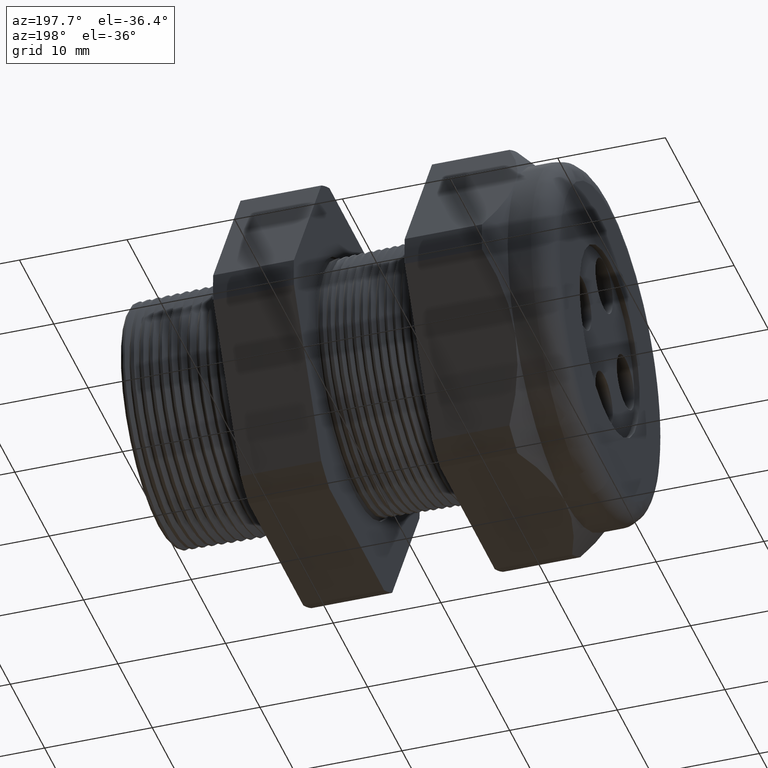
[diagram: clean part render]
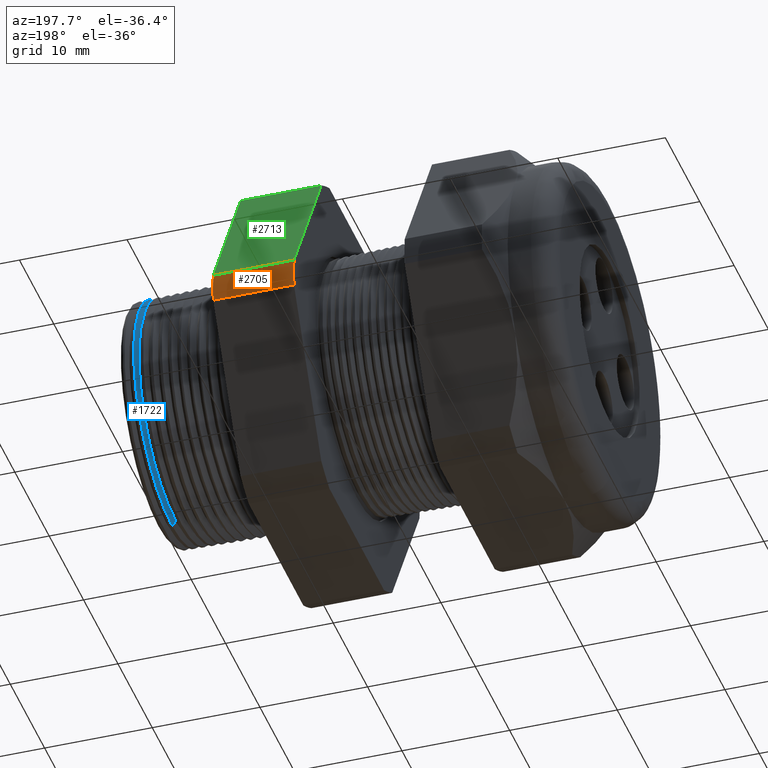
[diagram: same view with three faces highlighted in distinct colors, each labeled with its STEP entity id]
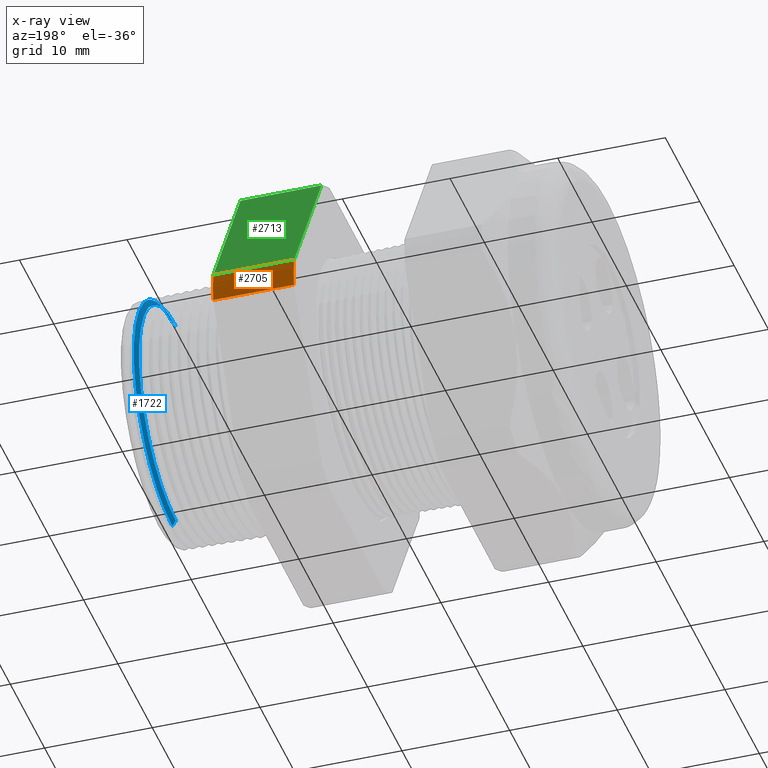
[diagram: x-ray of the same camera — body ghosted, the three highlighted faces saturated]
A machine part, auxiliary view with three faces highlighted in distinct colors.
The next image is the same camera in x-ray (body ghosted, the three faces saturated) — at least one of them is partly hidden behind the body in this view.
Their STEP definitions:

[orange] entity #2705 — the highlighted cylindrical surface (partial cylindrical patch) has radius 18.3261 mm, axis along (-1, 0, 0).
#117 = CIRCLE ( 'NONE', #180, 0.7214999999999999200 ) ;
#155 = CARTESIAN_POINT ( 'NONE',  ( -0.6052755905511810800, 0.7194909755756818700, -0.05380507471562089700 ) ) ;
#156 = DIRECTION ( 'NONE',  ( 0.0000000000000000000, 0.0000000000000000000, 1.000000000000000000 ) ) ;
#157 = DIRECTION ( 'NONE',  ( -1.000000000000000000, 0.0000000000000000000, 0.0000000000000000000 ) ) ;
#158 = CARTESIAN_POINT ( 'NONE',  ( -0.6052755905511810800, 0.0000000000000000000, 0.0000000000000000000 ) ) ;
#159 = AXIS2_PLACEMENT_3D ( 'NONE', #158, #157, #156 ) ;
#160 = CIRCLE ( 'NONE', #159, 0.7214999999999999200 ) ;
#161 = CARTESIAN_POINT ( 'NONE',  ( -0.6052755905511810800, 0.7194909755756817600, 0.05380507471562173000 ) ) ;
#176 = CARTESIAN_POINT ( 'NONE',  ( -0.3100000000000000000, 0.7194909755756817600, 0.05380507471562173000 ) ) ;
#177 = DIRECTION ( 'NONE',  ( 0.0000000000000000000, 0.0000000000000000000, -1.000000000000000000 ) ) ;
#178 = DIRECTION ( 'NONE',  ( 1.000000000000000000, 0.0000000000000000000, 0.0000000000000000000 ) ) ;
#179 = CARTESIAN_POINT ( 'NONE',  ( -0.3100000000000000000, 0.0000000000000000000, 0.0000000000000000000 ) ) ;
#180 = AXIS2_PLACEMENT_3D ( 'NONE', #179, #178, #177 ) ;
#321 = DIRECTION ( 'NONE',  ( -1.000000000000000000, 0.0000000000000000000, 0.0000000000000000000 ) ) ;
#322 = VECTOR ( 'NONE', #321, 39.37007874015748100 ) ;
#323 = CARTESIAN_POINT ( 'NONE',  ( 0.1200000000000000900, 0.7194909755756817600, 0.05380507471562173000 ) ) ;
#324 = LINE ( 'NONE', #323, #322 ) ;
#325 = DIRECTION ( 'NONE',  ( -1.000000000000000000, 0.0000000000000000000, 0.0000000000000000000 ) ) ;
#326 = VECTOR ( 'NONE', #325, 39.37007874015748100 ) ;
#327 = CARTESIAN_POINT ( 'NONE',  ( 0.1200000000000000900, 0.7194909755756818700, -0.05380507471562089700 ) ) ;
#328 = DIRECTION ( 'NONE',  ( 0.0000000000000000000, 0.0000000000000000000, 1.000000000000000000 ) ) ;
#329 = DIRECTION ( 'NONE',  ( -1.000000000000000000, 0.0000000000000000000, 0.0000000000000000000 ) ) ;
#330 = CARTESIAN_POINT ( 'NONE',  ( 0.1200000000000000900, 0.0000000000000000000, 0.0000000000000000000 ) ) ;
#331 = AXIS2_PLACEMENT_3D ( 'NONE', #330, #329, #328 ) ;
#332 = CYLINDRICAL_SURFACE ( 'NONE', #331, 0.7214999999999999200 ) ;
#333 = LINE ( 'NONE', #327, #326 ) ;
#334 = FACE_OUTER_BOUND ( 'NONE', #2706, .T. ) ;
#2544 = VERTEX_POINT ( 'NONE', #5664 ) ;
#2603 = EDGE_CURVE ( 'NONE', #2544, #2604, #117, .T. ) ;
#2604 = VERTEX_POINT ( 'NONE', #176 ) ;
#2614 = VERTEX_POINT ( 'NONE', #161 ) ;
#2616 = EDGE_CURVE ( 'NONE', #2614, #2617, #160, .T. ) ;
#2617 = VERTEX_POINT ( 'NONE', #155 ) ;
#2705 = ADVANCED_FACE ( 'NONE', ( #334 ), #332, .T. ) ;
#2706 = EDGE_LOOP ( 'NONE', ( #2707, #2709, #2710, #2712 ) ) ;
#2707 = ORIENTED_EDGE ( 'NONE', *, *, #2708, .T. ) ;
#2708 = EDGE_CURVE ( 'NONE', #2544, #2617, #333, .T. ) ;
#2709 = ORIENTED_EDGE ( 'NONE', *, *, #2616, .F. ) ;
#2710 = ORIENTED_EDGE ( 'NONE', *, *, #2711, .F. ) ;
#2711 = EDGE_CURVE ( 'NONE', #2604, #2614, #324, .T. ) ;
#2712 = ORIENTED_EDGE ( 'NONE', *, *, #2603, .F. ) ;
#5664 = CARTESIAN_POINT ( 'NONE',  ( -0.3100000000000000000, 0.7194909755756817600, -0.05380507471562094600 ) ) ;

[blue] entity #1722 — the highlighted conical surface has half-angle 58.5 deg.
#945 = CARTESIAN_POINT ( 'NONE',  ( 0.05652926432092481000, 0.0000000000000000000, 0.4212184895733915900 ) ) ;
#1024 = DIRECTION ( 'NONE',  ( 0.5224985647159347000, 0.0000000000000000000, -0.8526401643541008400 ) ) ;
#1025 = VECTOR ( 'NONE', #1024, 39.37007874015748100 ) ;
#1026 = CARTESIAN_POINT ( 'NONE',  ( 0.05652926432092481000, 0.0000000000000000000, -0.4212184895733915900 ) ) ;
#1027 = LINE ( 'NONE', #1026, #1025 ) ;
#1029 = CARTESIAN_POINT ( 'NONE',  ( 0.06910148289796844100, 5.409687239479051700E-017, -0.4417344856692956300 ) ) ;
#1032 = DIRECTION ( 'NONE',  ( 0.5224985647159347000, 1.044183048100722800E-016, 0.8526401643541008400 ) ) ;
#1033 = VECTOR ( 'NONE', #1032, 39.37007874015748100 ) ;
#1034 = CARTESIAN_POINT ( 'NONE',  ( 0.05652926432092481000, 5.158438749977368000E-017, 0.4212184895733915900 ) ) ;
#1035 = LINE ( 'NONE', #1034, #1033 ) ;
#1110 = CARTESIAN_POINT ( 'NONE',  ( 0.06910148289796844100, 0.0000000000000000000, 0.4417344856692956300 ) ) ;
#1111 = DIRECTION ( 'NONE',  ( 0.0000000000000000000, 0.0000000000000000000, -1.000000000000000000 ) ) ;
#1112 = DIRECTION ( 'NONE',  ( -1.000000000000000000, 0.0000000000000000000, 0.0000000000000000000 ) ) ;
#1113 = CARTESIAN_POINT ( 'NONE',  ( 0.06910148289796844100, 0.0000000000000000000, 0.0000000000000000000 ) ) ;
#1114 = AXIS2_PLACEMENT_3D ( 'NONE', #1113, #1112, #1111 ) ;
#1115 = CIRCLE ( 'NONE', #1114, 0.4417344856692956300 ) ;
#1419 = VERTEX_POINT ( 'NONE', #3488 ) ;
#1425 = EDGE_CURVE ( 'NONE', #1419, #4015, #3485, .T. ) ;
#1443 = EDGE_LOOP ( 'NONE', ( #5761, #5703, #3980, #5723 ) ) ;
#1722 = ADVANCED_FACE ( 'NONE', ( #4027 ), #4022, .T. ) ;
#3477 = DIRECTION ( 'NONE',  ( 0.0000000000000000000, 0.0000000000000000000, -1.000000000000000000 ) ) ;
#3478 = DIRECTION ( 'NONE',  ( 1.000000000000000000, 0.0000000000000000000, 0.0000000000000000000 ) ) ;
#3479 = CARTESIAN_POINT ( 'NONE',  ( 0.05652926432092481000, 0.0000000000000000000, 0.0000000000000000000 ) ) ;
#3480 = AXIS2_PLACEMENT_3D ( 'NONE', #3479, #3478, #3477 ) ;
#3485 = CIRCLE ( 'NONE', #3480, 0.4212184895733915900 ) ;
#3488 = CARTESIAN_POINT ( 'NONE',  ( 0.05652926432092481000, 5.287919790946048300E-017, -0.4212184895733915900 ) ) ;
#3980 = ORIENTED_EDGE ( 'NONE', *, *, #5745, .T. ) ;
#4015 = VERTEX_POINT ( 'NONE', #945 ) ;
#4017 = DIRECTION ( 'NONE',  ( 0.0000000000000000000, 0.0000000000000000000, -1.000000000000000000 ) ) ;
#4018 = DIRECTION ( 'NONE',  ( 1.000000000000000000, 0.0000000000000000000, 0.0000000000000000000 ) ) ;
#4019 = CARTESIAN_POINT ( 'NONE',  ( 0.05652926432092481000, 0.0000000000000000000, 0.0000000000000000000 ) ) ;
#4020 = AXIS2_PLACEMENT_3D ( 'NONE', #4019, #4018, #4017 ) ;
#4022 = CONICAL_SURFACE ( 'NONE', #4020, 0.4212184895733915900, 1.021017612416699400 ) ;
#4027 = FACE_OUTER_BOUND ( 'NONE', #1443, .T. ) ;
#5703 = ORIENTED_EDGE ( 'NONE', *, *, #5725, .T. ) ;
#5723 = ORIENTED_EDGE ( 'NONE', *, *, #5729, .F. ) ;
#5725 = EDGE_CURVE ( 'NONE', #4015, #5749, #1035, .T. ) ;
#5727 = VERTEX_POINT ( 'NONE', #1029 ) ;
#5729 = EDGE_CURVE ( 'NONE', #1419, #5727, #1027, .T. ) ;
#5745 = EDGE_CURVE ( 'NONE', #5749, #5727, #1115, .T. ) ;
#5749 = VERTEX_POINT ( 'NONE', #1110 ) ;
#5761 = ORIENTED_EDGE ( 'NONE', *, *, #1425, .T. ) ;

[green] entity #2713 — the highlighted planar face has unit normal (0, 0.866, 0.5).
#161 = CARTESIAN_POINT ( 'NONE',  ( -0.6052755905511810800, 0.7194909755756817600, 0.05380507471562173000 ) ) ;
#162 = CARTESIAN_POINT ( 'NONE',  ( -0.6052755905511810800, 0.4063420493440890700, 0.5961949252843787800 ) ) ;
#163 = DIRECTION ( 'NONE',  ( 0.0000000000000000000, 0.4999999999999998900, -0.8660254037844386000 ) ) ;
#164 = VECTOR ( 'NONE', #163, 39.37007874015748100 ) ;
#165 = CARTESIAN_POINT ( 'NONE',  ( -0.6052755905511809600, 0.8879165124598854500, -0.2379165124598849300 ) ) ;
#166 = LINE ( 'NONE', #165, #164 ) ;
#172 = DIRECTION ( 'NONE',  ( 0.0000000000000000000, -0.4999999999999998900, 0.8660254037844386000 ) ) ;
#173 = VECTOR ( 'NONE', #172, 39.37007874015748100 ) ;
#174 = CARTESIAN_POINT ( 'NONE',  ( -0.3100000000000000000, 0.8879165124598854500, -0.2379165124598849300 ) ) ;
#175 = LINE ( 'NONE', #174, #173 ) ;
#176 = CARTESIAN_POINT ( 'NONE',  ( -0.3100000000000000000, 0.7194909755756817600, 0.05380507471562173000 ) ) ;
#280 = DIRECTION ( 'NONE',  ( -1.000000000000000000, 0.0000000000000000000, 0.0000000000000000000 ) ) ;
#281 = VECTOR ( 'NONE', #280, 39.37007874015748100 ) ;
#282 = CARTESIAN_POINT ( 'NONE',  ( 0.1200000000000000900, 0.4063420493440890700, 0.5961949252843787800 ) ) ;
#283 = LINE ( 'NONE', #282, #281 ) ;
#315 = DIRECTION ( 'NONE',  ( 0.0000000000000000000, -0.4999999999999998900, 0.8660254037844386000 ) ) ;
#316 = DIRECTION ( 'NONE',  ( 0.0000000000000000000, 0.8660254037844387100, 0.4999999999999999400 ) ) ;
#317 = CARTESIAN_POINT ( 'NONE',  ( 0.1200000000000000900, 0.4063420493440890700, 0.5961949252843786700 ) ) ;
#318 = AXIS2_PLACEMENT_3D ( 'NONE', #317, #316, #315 ) ;
#319 = PLANE ( 'NONE',  #318 ) ;
#320 = FACE_OUTER_BOUND ( 'NONE', #2714, .T. ) ;
#321 = DIRECTION ( 'NONE',  ( -1.000000000000000000, 0.0000000000000000000, 0.0000000000000000000 ) ) ;
#322 = VECTOR ( 'NONE', #321, 39.37007874015748100 ) ;
#323 = CARTESIAN_POINT ( 'NONE',  ( 0.1200000000000000900, 0.7194909755756817600, 0.05380507471562173000 ) ) ;
#324 = LINE ( 'NONE', #323, #322 ) ;
#2522 = VERTEX_POINT ( 'NONE', #5642 ) ;
#2604 = VERTEX_POINT ( 'NONE', #176 ) ;
#2606 = EDGE_CURVE ( 'NONE', #2604, #2522, #175, .T. ) ;
#2612 = EDGE_CURVE ( 'NONE', #2613, #2614, #166, .T. ) ;
#2613 = VERTEX_POINT ( 'NONE', #162 ) ;
#2614 = VERTEX_POINT ( 'NONE', #161 ) ;
#2691 = ORIENTED_EDGE ( 'NONE', *, *, #2711, .T. ) ;
#2692 = ORIENTED_EDGE ( 'NONE', *, *, #2612, .F. ) ;
#2693 = ORIENTED_EDGE ( 'NONE', *, *, #2694, .F. ) ;
#2694 = EDGE_CURVE ( 'NONE', #2522, #2613, #283, .T. ) ;
#2695 = ORIENTED_EDGE ( 'NONE', *, *, #2606, .F. ) ;
#2711 = EDGE_CURVE ( 'NONE', #2604, #2614, #324, .T. ) ;
#2713 = ADVANCED_FACE ( 'NONE', ( #320 ), #319, .T. ) ;
#2714 = EDGE_LOOP ( 'NONE', ( #2691, #2692, #2693, #2695 ) ) ;
#5642 = CARTESIAN_POINT ( 'NONE',  ( -0.3100000000000000000, 0.4063420493440890700, 0.5961949252843787800 ) ) ;